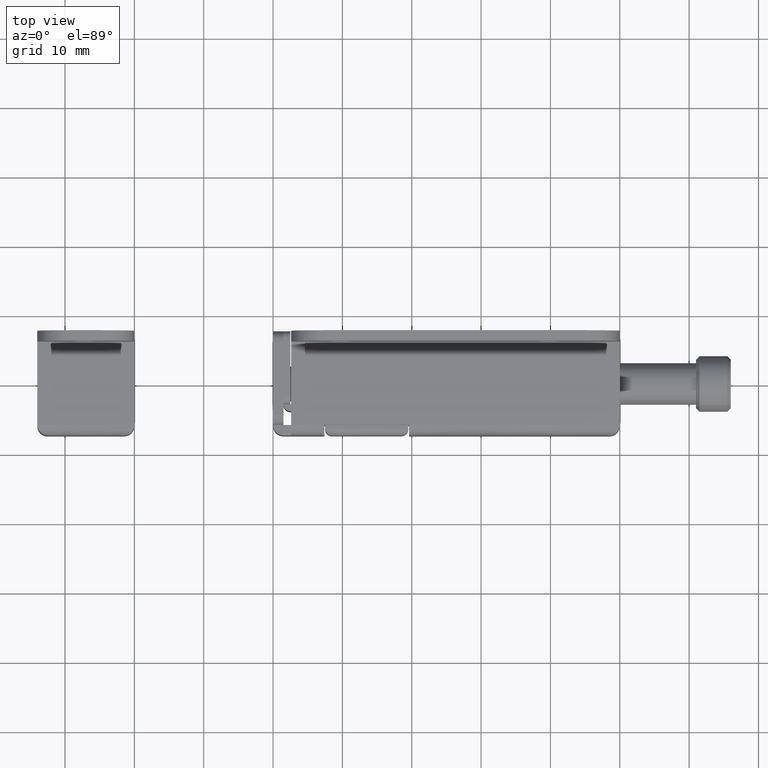
[diagram: clean part render]
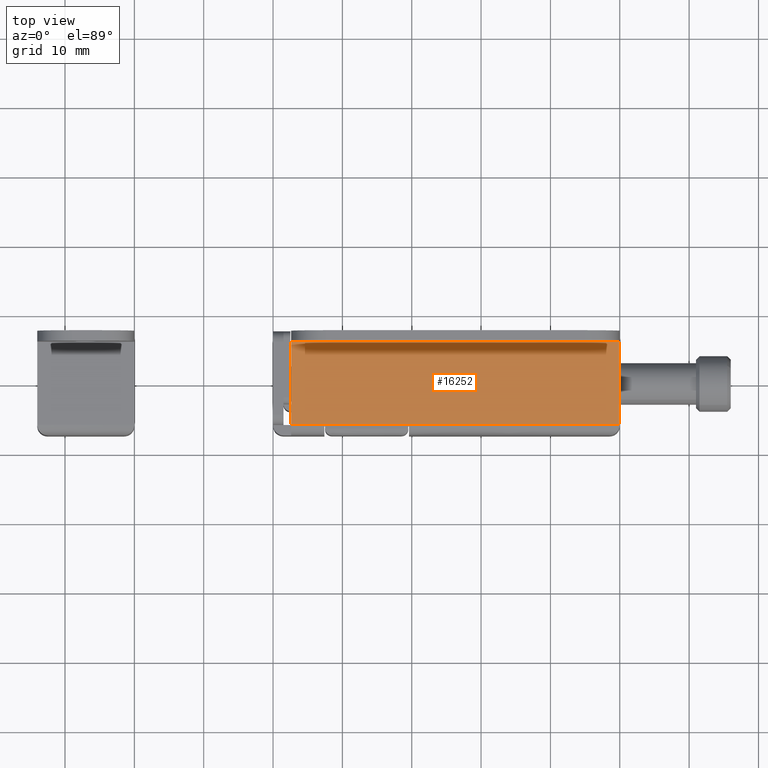
[diagram: same view with one face highlighted and labeled with its STEP entity id]
A machine part, top view. The second image highlights one B-rep face of the part: STEP entity #16252.
In plain terms, the highlighted face is a freeform B-spline surface patch.
Its self-contained STEP definition (entity closure, byte-faithful):
#15169=CARTESIAN_POINT('',(50.0,-6.0,6.500000000000000));
#15170=VERTEX_POINT('',#15169);
#15461=CARTESIAN_POINT('',(19.600000000000001,-6.0,6.500000000000000));
#15462=VERTEX_POINT('',#15461);
#15530=CARTESIAN_POINT('',(7.399999999999910,-6.0,6.500000000000000));
#15531=VERTEX_POINT('',#15530);
#15602=CARTESIAN_POINT('',(19.600000000000001,-6.0,6.500000000000000));
#15603=CARTESIAN_POINT('',(7.399999999999910,-6.0,6.500000000000000));
#15604=QUASI_UNIFORM_CURVE('',1,(#15602,#15603),.UNSPECIFIED.,.F.,.U.);
#15605=EDGE_CURVE('',#15462,#15531,#15604,.T.);
#16180=CARTESIAN_POINT('',(50.0,6.0,6.500000000000000));
#16181=VERTEX_POINT('',#16180);
#16190=CARTESIAN_POINT('',(2.600000000000045,6.0,6.500000000000000));
#16191=VERTEX_POINT('',#16190);
#16197=CARTESIAN_POINT('',(2.600000000000045,6.0,6.500000000000000));
#16198=CARTESIAN_POINT('',(50.0,6.0,6.500000000000000));
#16199=QUASI_UNIFORM_CURVE('',1,(#16197,#16198),.UNSPECIFIED.,.F.,.U.);
#16200=EDGE_CURVE('',#16191,#16181,#16199,.T.);
#16221=CARTESIAN_POINT('',(0.232369646913156,-6.599399976741672,6.500000000000000));
#16222=CARTESIAN_POINT('',(0.232369646913156,6.599400298606754,6.500000000000000));
#16223=CARTESIAN_POINT('',(52.367631200664938,-6.599399976741672,6.500000000000000));
#16224=CARTESIAN_POINT('',(52.367631200664938,6.599400298606754,6.500000000000000));
#16225=B_SPLINE_SURFACE_WITH_KNOTS('',1,1,((#16221,#16223),(#16222,#16224)),.UNSPECIFIED.,.F.,.F.,.U.,(2,2),(2,2),(0.0,13.198800275348431),(0.0,52.135261553751782),.UNSPECIFIED.);
#16226=CARTESIAN_POINT('',(50.0,-6.0,6.500000000000000));
#16227=CARTESIAN_POINT('',(50.0,6.0,6.500000000000000));
#16228=QUASI_UNIFORM_CURVE('',1,(#16226,#16227),.UNSPECIFIED.,.F.,.U.);
#16229=EDGE_CURVE('',#15170,#16181,#16228,.T.);
#16230=ORIENTED_EDGE('',*,*,#16229,.T.);
#16231=ORIENTED_EDGE('',*,*,#16200,.F.);
#16232=CARTESIAN_POINT('',(2.600000000000045,-6.0,6.500000000000000));
#16233=VERTEX_POINT('',#16232);
#16234=CARTESIAN_POINT('',(2.600000000000045,-6.0,6.500000000000000));
#16235=CARTESIAN_POINT('',(2.600000000000045,6.0,6.500000000000000));
#16236=QUASI_UNIFORM_CURVE('',1,(#16234,#16235),.UNSPECIFIED.,.F.,.U.);
#16237=EDGE_CURVE('',#16233,#16191,#16236,.T.);
#16238=ORIENTED_EDGE('',*,*,#16237,.F.);
#16239=CARTESIAN_POINT('',(2.600000000000045,-6.0,6.500000000000000));
#16240=CARTESIAN_POINT('',(7.399999999999910,-6.0,6.500000000000000));
#16241=QUASI_UNIFORM_CURVE('',1,(#16239,#16240),.UNSPECIFIED.,.F.,.U.);
#16242=EDGE_CURVE('',#16233,#15531,#16241,.T.);
#16243=ORIENTED_EDGE('',*,*,#16242,.T.);
#16244=ORIENTED_EDGE('',*,*,#15605,.F.);
#16245=CARTESIAN_POINT('',(19.600000000000001,-6.0,6.500000000000000));
#16246=CARTESIAN_POINT('',(50.0,-6.0,6.500000000000000));
#16247=QUASI_UNIFORM_CURVE('',1,(#16245,#16246),.UNSPECIFIED.,.F.,.U.);
#16248=EDGE_CURVE('',#15462,#15170,#16247,.T.);
#16249=ORIENTED_EDGE('',*,*,#16248,.T.);
#16250=EDGE_LOOP('',(#16230,#16231,#16238,#16243,#16244,#16249));
#16251=FACE_OUTER_BOUND('',#16250,.T.);
#16252=ADVANCED_FACE('',(#16251),#16225,.F.);